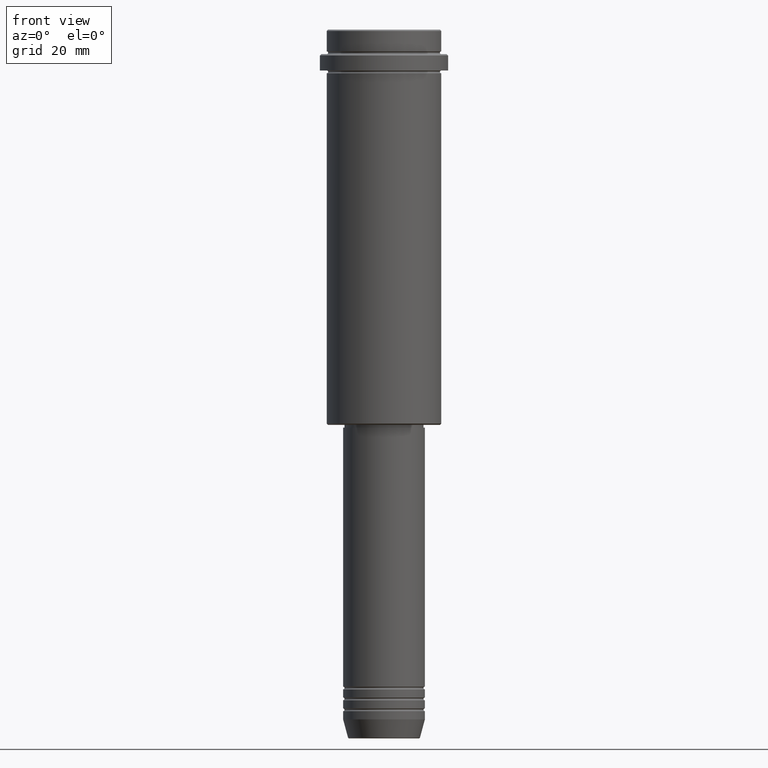
[diagram: clean part render]
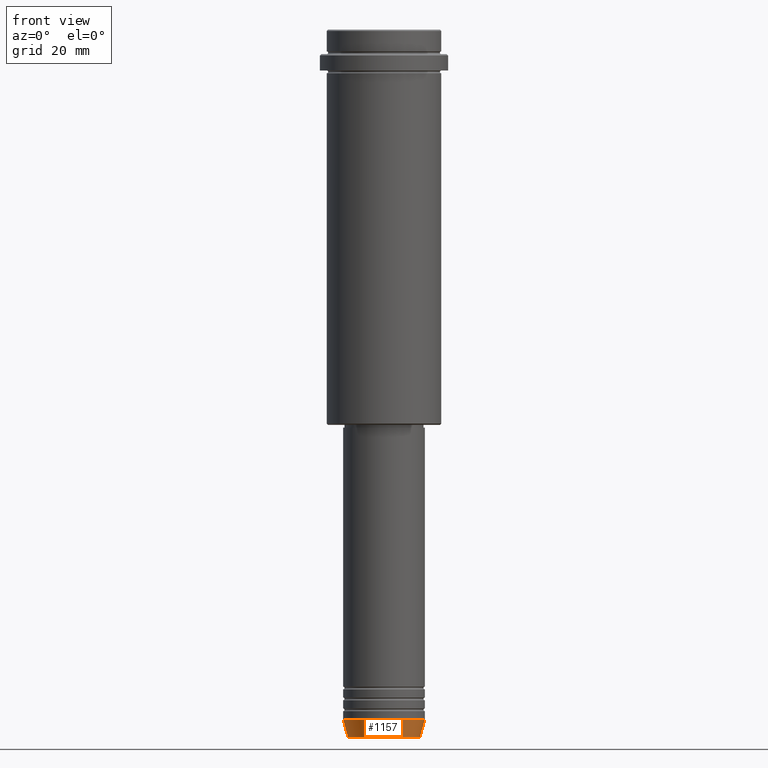
[diagram: same view with one face highlighted and labeled with its STEP entity id]
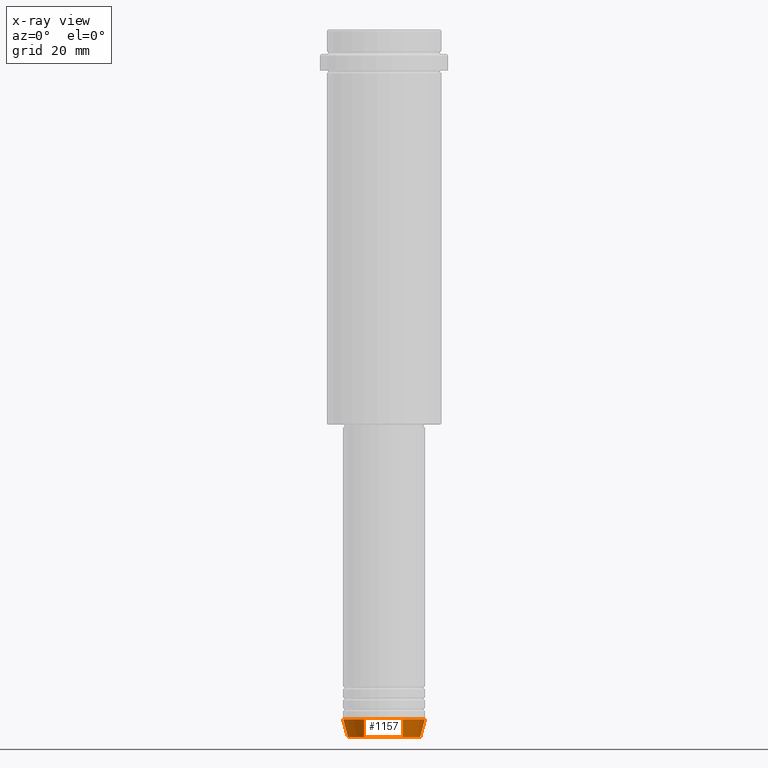
[diagram: x-ray of the same camera — body ghosted, the highlighted face saturated]
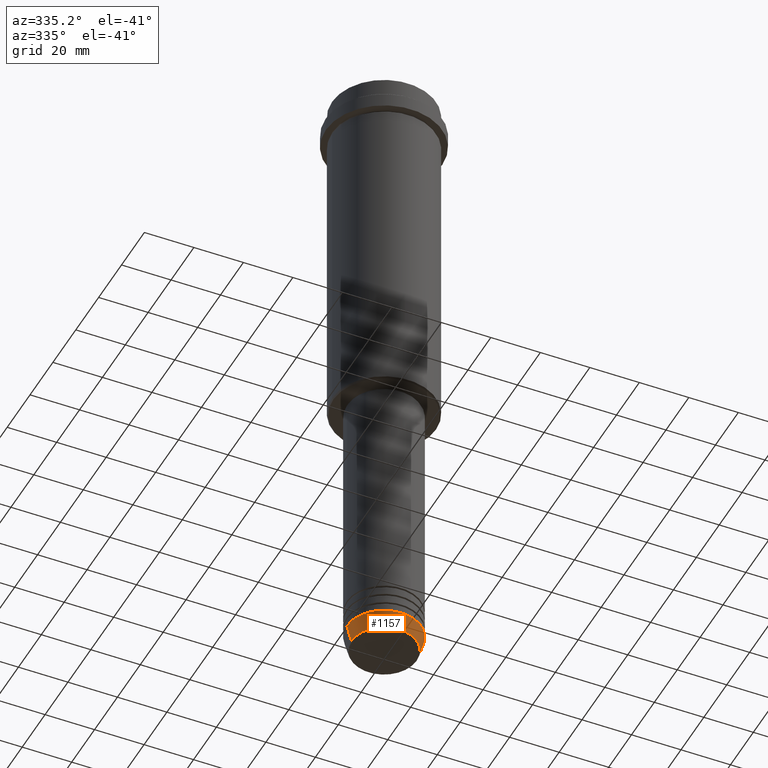
[diagram: same view with one face highlighted and labeled with its STEP entity id]
A machine part, front view. The second image highlights one B-rep face of the part: STEP entity #1157.
The next image is the same camera in x-ray: the body ghosted, the highlighted face saturated — about 0% of this face is hidden behind the body in this view.
A second angle (auxiliary view) of the same face is appended — the face is thin or edge-on in the first view.
In plain terms, the highlighted conical surface has half-angle 15 deg.
Its self-contained STEP definition (entity closure, byte-faithful):
#2 = DIRECTION ( 'NONE',  ( 0.2588190451025213501, 0.000000000000000000, 0.9659258262890680902 ) ) ;
#63 = VERTEX_POINT ( 'NONE', #740 ) ;
#86 = CARTESIAN_POINT ( 'NONE',  ( -15.00000000000000000, 1.836970198721029589E-15, -253.0000000000000000 ) ) ;
#89 = VECTOR ( 'NONE', #1039, 1000.000000000000000 ) ;
#96 = EDGE_CURVE ( 'NONE', #63, #565, #976, .T. ) ;
#152 = VERTEX_POINT ( 'NONE', #86 ) ;
#158 = DIRECTION ( 'NONE',  ( -0.000000000000000000, -0.000000000000000000, 1.000000000000000000 ) ) ;
#166 = VECTOR ( 'NONE', #2, 1000.000000000000000 ) ;
#209 = CARTESIAN_POINT ( 'NONE',  ( 15.00000000000000000, 0.000000000000000000, -253.0000000000000000 ) ) ;
#225 = DIRECTION ( 'NONE',  ( 1.000000000000000000, 0.000000000000000000, 0.000000000000000000 ) ) ;
#246 = VERTEX_POINT ( 'NONE', #259 ) ;
#259 = CARTESIAN_POINT ( 'NONE',  ( -13.22365507213718772, 1.728200442216588386E-15, -259.6294095225513274 ) ) ;
#438 = ORIENTED_EDGE ( 'NONE', *, *, #96, .T. ) ;
#481 = EDGE_CURVE ( 'NONE', #246, #152, #605, .T. ) ;
#499 = ORIENTED_EDGE ( 'NONE', *, *, #481, .F. ) ;
#563 = CIRCLE ( 'NONE', #983, 15.00000000000000000 ) ;
#565 = VERTEX_POINT ( 'NONE', #1167 ) ;
#590 = EDGE_CURVE ( 'NONE', #246, #63, #744, .T. ) ;
#605 = LINE ( 'NONE', #833, #89 ) ;
#700 = CONICAL_SURFACE ( 'NONE', #1378, 15.00000000000000000, 0.2617993877991500740 ) ;
#712 = DIRECTION ( 'NONE',  ( 1.000000000000000000, 0.000000000000000000, 0.000000000000000000 ) ) ;
#740 = CARTESIAN_POINT ( 'NONE',  ( 13.22365507213718772, 0.000000000000000000, -259.6294095225513274 ) ) ;
#744 = CIRCLE ( 'NONE', #1037, 13.22365507213718772 ) ;
#790 = CARTESIAN_POINT ( 'NONE',  ( 0.000000000000000000, 0.000000000000000000, -253.0000000000000000 ) ) ;
#833 = CARTESIAN_POINT ( 'NONE',  ( -15.00000000000000000, 1.836970198721029589E-15, -253.0000000000000000 ) ) ;
#834 = ORIENTED_EDGE ( 'NONE', *, *, #590, .T. ) ;
#976 = LINE ( 'NONE', #209, #166 ) ;
#983 = AXIS2_PLACEMENT_3D ( 'NONE', #1310, #1204, #225 ) ;
#1017 = FACE_OUTER_BOUND ( 'NONE', #1216, .T. ) ;
#1037 = AXIS2_PLACEMENT_3D ( 'NONE', #1417, #1391, #1278 ) ;
#1039 = DIRECTION ( 'NONE',  ( -0.2588190451025213501, 3.169619151431772337E-17, 0.9659258262890680902 ) ) ;
#1070 = EDGE_CURVE ( 'NONE', #152, #565, #563, .T. ) ;
#1157 = ADVANCED_FACE ( 'NONE', ( #1017 ), #700, .T. ) ;
#1167 = CARTESIAN_POINT ( 'NONE',  ( 15.00000000000000000, 0.000000000000000000, -253.0000000000000000 ) ) ;
#1204 = DIRECTION ( 'NONE',  ( -0.000000000000000000, -0.000000000000000000, 1.000000000000000000 ) ) ;
#1216 = EDGE_LOOP ( 'NONE', ( #499, #834, #438, #1373 ) ) ;
#1278 = DIRECTION ( 'NONE',  ( 1.000000000000000000, 0.000000000000000000, 0.000000000000000000 ) ) ;
#1310 = CARTESIAN_POINT ( 'NONE',  ( 0.000000000000000000, 0.000000000000000000, -253.0000000000000000 ) ) ;
#1373 = ORIENTED_EDGE ( 'NONE', *, *, #1070, .F. ) ;
#1378 = AXIS2_PLACEMENT_3D ( 'NONE', #790, #158, #712 ) ;
#1391 = DIRECTION ( 'NONE',  ( -0.000000000000000000, -0.000000000000000000, 1.000000000000000000 ) ) ;
#1417 = CARTESIAN_POINT ( 'NONE',  ( 0.000000000000000000, 0.000000000000000000, -259.6294095225513274 ) ) ;